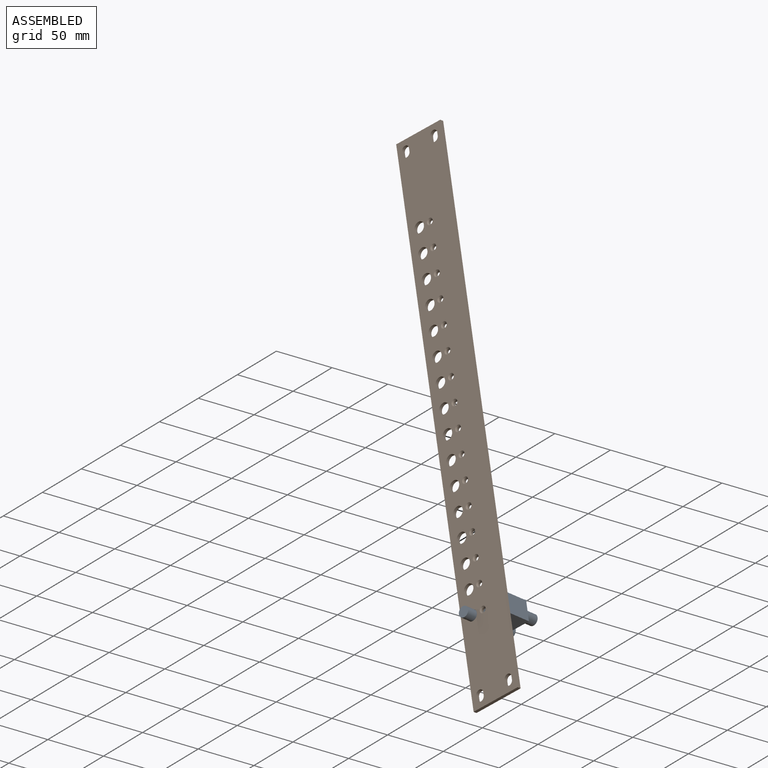
[diagram: assembled view]
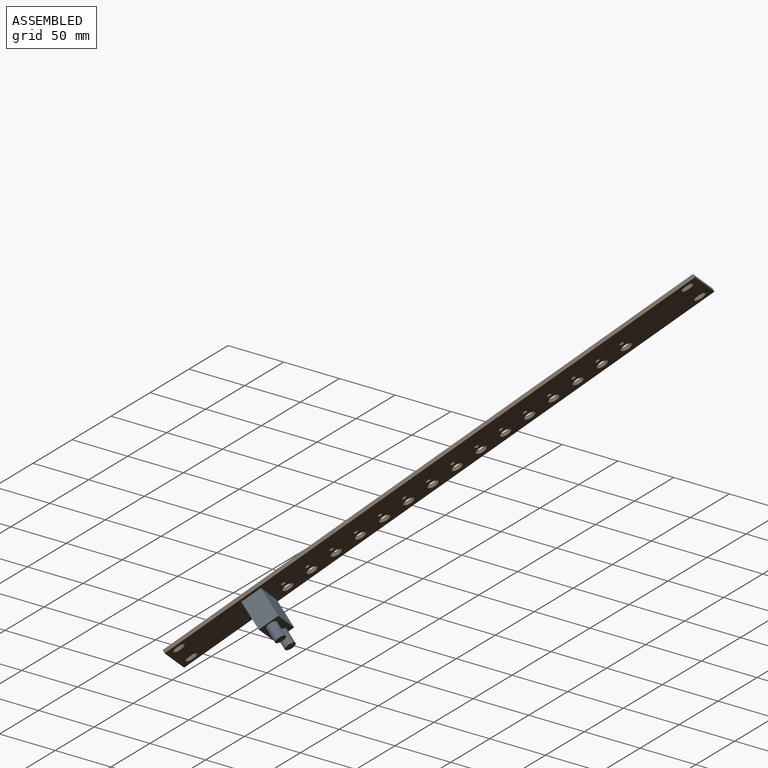
[diagram: assembled view, second angle]
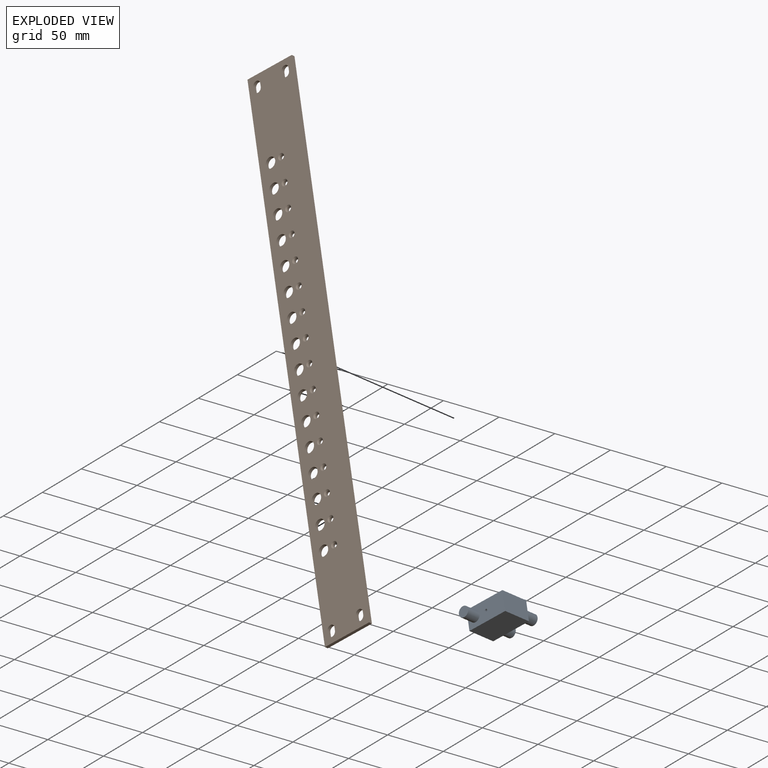
[diagram: exploded view]
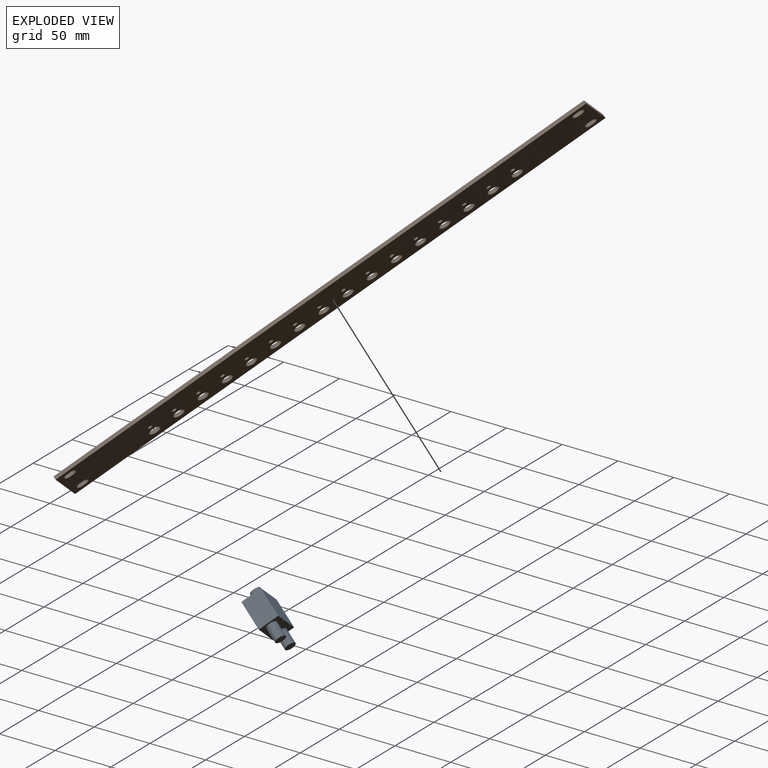
[diagram: exploded view, second angle]
ASSEMBLY  parts=2 mates=2
PART A: 14 faces, bbox 36x17.8x52 mm
  f0: plane 36x17.77mm, normal (0,0,1), area 567.3mm2, adj f1,f3,f4,f5,f6,f8
  f1: plane 26x17.77mm, normal (-1,0,0), area 462mm2, adj f0,f2,f4,f5
  f2: plane 36x17.77mm, normal (0,0,-1), area 503.9mm2, adj f1,f3,f4,f5,f10,f12
  f3: plane 26x17.77mm, normal (1,0,0), area 462mm2, adj f0,f2,f4,f5
  f4: plane 36x26mm, normal (0,-1,0), area 936mm2, adj f0,f1,f2,f3
  f5: plane 36x26mm, normal (0,1,0), area 936mm2, adj f0,f1,f2,f3
  f6: cylinder r=4.65mm len=12.5mm, axis (0,0,-1), area 365.2mm2, adj f0,f7
  f7: plane 9.3x9.3mm, normal (0,0,1), area 67.9mm2, adj f6
  f8: cylinder r=1.2mm len=10mm, axis (0,0,1), area 75.4mm2, adj f0,f9
  f9: plane 2.4x2.4mm, normal (0,0,1), area 4.5mm2, adj f8
  f10: cylinder r=4.65mm len=13.5mm, axis (0,0,1), area 394.4mm2, adj f2,f11
  f11: plane 9.3x9.3mm, normal (0,0,-1), area 67.9mm2, adj f10
  f12: cylinder r=4.65mm len=13.5mm, axis (0,0,1), area 394.4mm2, adj f2,f13
  f13: plane 9.3x9.3mm, normal (0,0,-1), area 67.9mm2, adj f12
PART B: 70 faces, bbox 482.6x3.1x44.5 mm
  f0: plane 482.6x3.1mm, normal (0,0,1), area 1496.1mm2, adj f1,f19,f20,f21
  f1: plane 44.45x3.1mm, normal (-1,0,0), area 137.8mm2, adj f0,f2,f20,f21
  f2: plane 482.6x3.1mm, normal (0,0,-1), area 1496.1mm2, adj f1,f19,f20,f21
  f3: cylinder r=3.5mm len=7mm, axis (0,1,0), area 34.1mm2, adj f4,f15,f20,f21
  f4: plane 3.1x2.95mm, normal (0,0,1), area 9.1mm2, adj f3,f5,f20,f21
  f5: cylinder r=3.5mm len=7mm, axis (0,1,0), area 34.1mm2, adj f4,f15,f20,f21
  f6: cylinder r=3.5mm len=7mm, axis (0,1,0), area 34.1mm2, adj f7,f16,f20,f21
  f7: plane 3.1x2.95mm, normal (0,0,1), area 9.1mm2, adj f6,f8,f20,f21
  f8: cylinder r=3.5mm len=7mm, axis (0,1,0), area 34.1mm2, adj f7,f16,f20,f21
  f9: cylinder r=3.5mm len=7mm, axis (0,1,0), area 34.1mm2, adj f10,f17,f20,f21
  f10: plane 3.1x2.95mm, normal (0,0,1), area 9.1mm2, adj f9,f11,f20,f21
  f11: cylinder r=3.5mm len=7mm, axis (0,1,0), area 34.1mm2, adj f10,f17,f20,f21
  f12: cylinder r=3.5mm len=7mm, axis (0,1,0), area 34.1mm2, adj f13,f18,f20,f21
  f13: plane 3.1x2.95mm, normal (0,0,1), area 9.1mm2, adj f12,f14,f20,f21
  f14: cylinder r=3.5mm len=7mm, axis (0,1,0), area 34.1mm2, adj f13,f18,f20,f21
  f15: plane 3.1x2.95mm, normal (0,0,-1), area 9.1mm2, adj f3,f5,f20,f21
  f16: plane 3.1x2.95mm, normal (0,0,-1), area 9.1mm2, adj f6,f8,f20,f21
  f17: plane 3.1x2.95mm, normal (0,0,-1), area 9.1mm2, adj f9,f11,f20,f21
  f18: plane 3.1x2.95mm, normal (0,0,-1), area 9.1mm2, adj f12,f14,f20,f21
  f19: plane 44.45x3.1mm, normal (1,0,0), area 137.8mm2, adj f0,f2,f20,f21
  f20: plane 482.6x44.45mm, normal (0,-1,0), area 19658.2mm2, adj f0,f1,f2,f3,f4,f5,f6,f7
  f21: plane 482.6x44.45mm, normal (0,1,0), area 19899.5mm2, adj f0,f1,f2,f3,f4,f5,f6,f7
  f22: cylinder r=4.75mm len=9.5mm, axis (0,-1,0), area 92.5mm2, adj f20,f21
  f23: cylinder r=1.9mm len=3.8mm, axis (0,-1,0), area 25.1mm2, adj f21,f24
  f24: cone r=1.9mm half-angle=45deg, axis (0,-1,0), area 21.3mm2, adj f20,f23
  f25: cylinder r=4.75mm len=9.5mm, axis (0,-1,0), area 92.5mm2, adj f20,f21
  f26: cylinder r=1.9mm len=3.8mm, axis (0,-1,0), area 25.1mm2, adj f21,f27
  f27: cone r=1.9mm half-angle=45deg, axis (0,-1,0), area 21.3mm2, adj f20,f26
  f28: cylinder r=4.75mm len=9.5mm, axis (0,-1,0), area 92.5mm2, adj f20,f21
  f29: cylinder r=1.9mm len=3.8mm, axis (0,-1,0), area 25.1mm2, adj f21,f30
  f30: cone r=1.9mm half-angle=45deg, axis (0,-1,0), area 21.3mm2, adj f20,f29
  f31: cylinder r=4.75mm len=9.5mm, axis (0,-1,0), area 92.5mm2, adj f20,f21
  f32: cylinder r=1.9mm len=3.8mm, axis (0,-1,0), area 25.1mm2, adj f21,f33
  f33: cone r=1.9mm half-angle=45deg, axis (0,-1,0), area 21.3mm2, adj f20,f32
  f34: cylinder r=4.75mm len=9.5mm, axis (0,-1,0), area 92.5mm2, adj f20,f21
  f35: cylinder r=1.9mm len=3.8mm, axis (0,-1,0), area 25.1mm2, adj f21,f36
  f36: cone r=1.9mm half-angle=45deg, axis (0,-1,0), area 21.3mm2, adj f20,f35
  f37: cylinder r=4.75mm len=9.5mm, axis (0,-1,0), area 92.5mm2, adj f20,f21
  f38: cylinder r=1.9mm len=3.8mm, axis (0,-1,0), area 25.1mm2, adj f21,f39
  f39: cone r=1.9mm half-angle=45deg, axis (0,-1,0), area 21.3mm2, adj f20,f38
  f40: cylinder r=4.75mm len=9.5mm, axis (0,-1,0), area 92.5mm2, adj f20,f21
  f41: cylinder r=1.9mm len=3.8mm, axis (0,-1,0), area 25.1mm2, adj f21,f42
  f42: cone r=1.9mm half-angle=45deg, axis (0,-1,0), area 21.3mm2, adj f20,f41
  f43: cylinder r=4.75mm len=9.5mm, axis (0,-1,0), area 92.5mm2, adj f20,f21
  f44: cylinder r=1.9mm len=3.8mm, axis (0,-1,0), area 25.1mm2, adj f21,f45
  f45: cone r=1.9mm half-angle=45deg, axis (0,-1,0), area 21.3mm2, adj f20,f44
  f46: cylinder r=4.75mm len=9.5mm, axis (0,-1,0), area 92.5mm2, adj f20,f21
  f47: cylinder r=1.9mm len=3.8mm, axis (0,-1,0), area 25.1mm2, adj f21,f48
  f48: cone r=1.9mm half-angle=45deg, axis (0,-1,0), area 21.3mm2, adj f20,f47
  f49: cylinder r=4.75mm len=9.5mm, axis (0,-1,0), area 92.5mm2, adj f20,f21
  f50: cylinder r=1.9mm len=3.8mm, axis (0,-1,0), area 25.1mm2, adj f21,f51
  f51: cone r=1.9mm half-angle=45deg, axis (0,-1,0), area 21.3mm2, adj f20,f50
  f52: cylinder r=4.75mm len=9.5mm, axis (0,-1,0), area 92.5mm2, adj f20,f21
  f53: cylinder r=1.9mm len=3.8mm, axis (0,-1,0), area 25.1mm2, adj f21,f54
  f54: cone r=1.9mm half-angle=45deg, axis (0,-1,0), area 21.3mm2, adj f20,f53
  f55: cylinder r=4.75mm len=9.5mm, axis (0,-1,0), area 92.5mm2, adj f20,f21
  f56: cylinder r=1.9mm len=3.8mm, axis (0,-1,0), area 25.1mm2, adj f21,f57
  f57: cone r=1.9mm half-angle=45deg, axis (0,-1,0), area 21.3mm2, adj f20,f56
  f58: cylinder r=4.75mm len=9.5mm, axis (0,-1,0), area 92.5mm2, adj f20,f21
  f59: cylinder r=1.9mm len=3.8mm, axis (0,-1,0), area 25.1mm2, adj f21,f60
  f60: cone r=1.9mm half-angle=45deg, axis (0,-1,0), area 21.3mm2, adj f20,f59
  f61: cylinder r=4.75mm len=9.5mm, axis (0,-1,0), area 92.5mm2, adj f20,f21
  f62: cylinder r=1.9mm len=3.8mm, axis (0,-1,0), area 25.1mm2, adj f21,f63
  f63: cone r=1.9mm half-angle=45deg, axis (0,-1,0), area 21.3mm2, adj f20,f62
  f64: cylinder r=4.75mm len=9.5mm, axis (0,-1,0), area 92.5mm2, adj f20,f21
  f65: cylinder r=1.9mm len=3.8mm, axis (0,-1,0), area 25.1mm2, adj f21,f66
  f66: cone r=1.9mm half-angle=45deg, axis (0,-1,0), area 21.3mm2, adj f20,f65
  f67: cylinder r=4.75mm len=9.5mm, axis (0,-1,0), area 92.5mm2, adj f20,f21
  f68: cylinder r=1.9mm len=3.8mm, axis (0,-1,0), area 25.1mm2, adj f21,f69
  f69: cone r=1.9mm half-angle=45deg, axis (0,-1,0), area 21.3mm2, adj f20,f68
PLACE A rot(axis=(0.77,-0.49,0.4),62.3deg) t=(-246.57,26.84,71.63)mm
PLACE B rot(axis=(-0.4,0.77,-0.49),61.6deg) t=(-478.9,241.55,312.7)mm
MATE planar A.f8 <-> B.f68  axis (-0.27,-0.79,0.55) through (-234.42,3.83,91.72)mm
MATE slider A.f6 <-> B.f67  axis (-0.27,-0.79,0.55) through (-246.43,-7.74,91.97)mm
